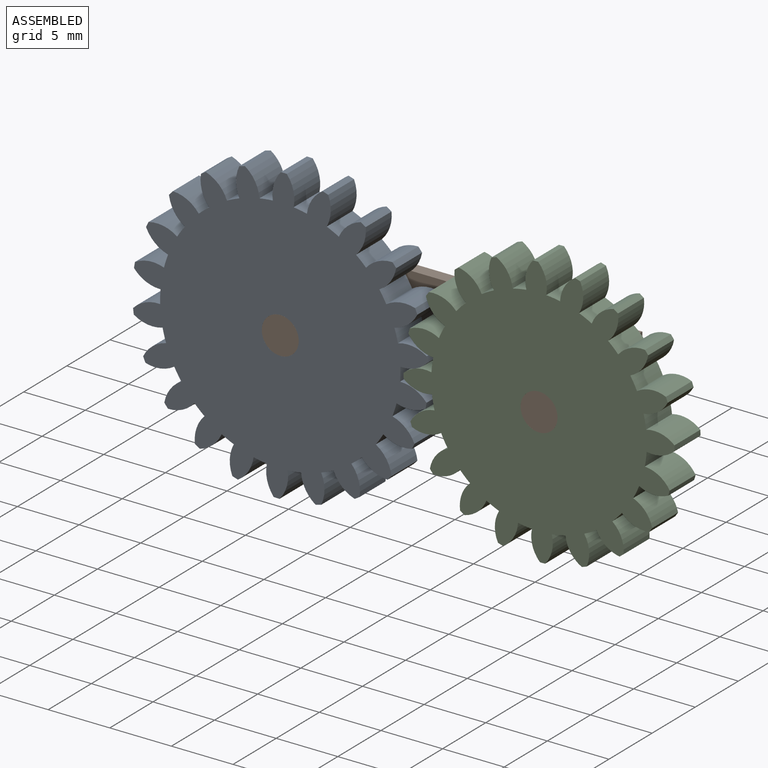
[diagram: assembled view]
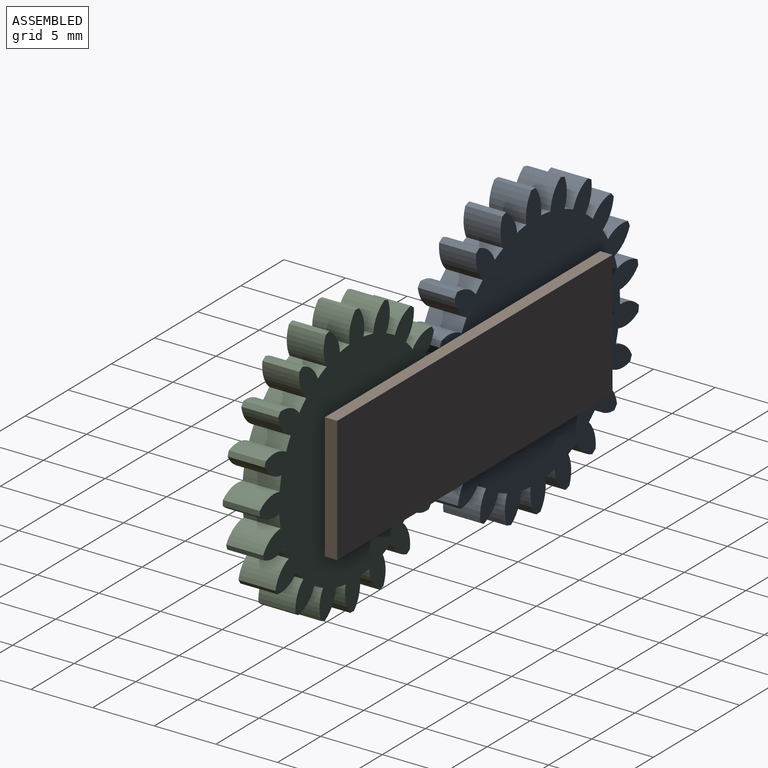
[diagram: assembled view, second angle]
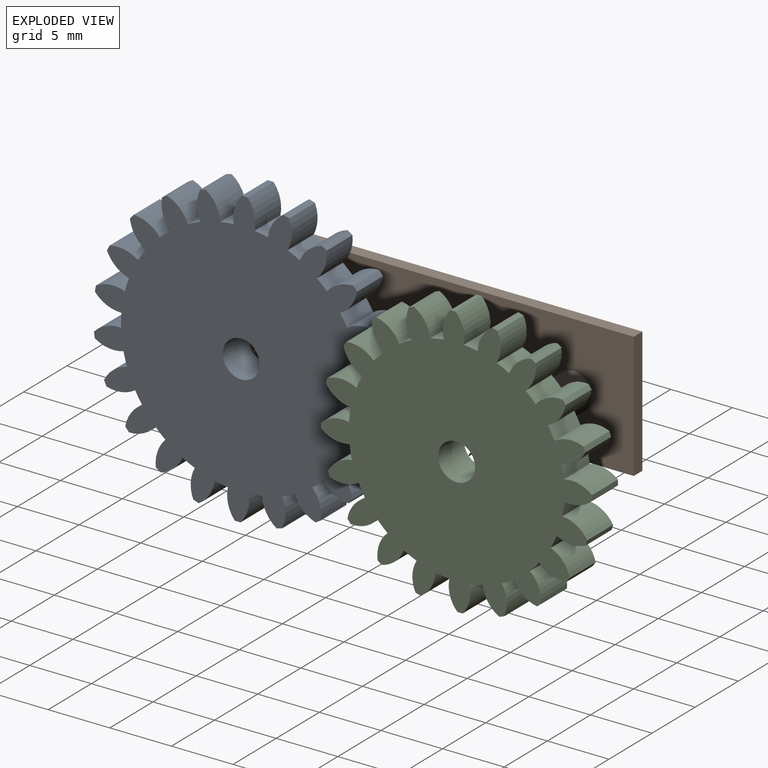
[diagram: exploded view]
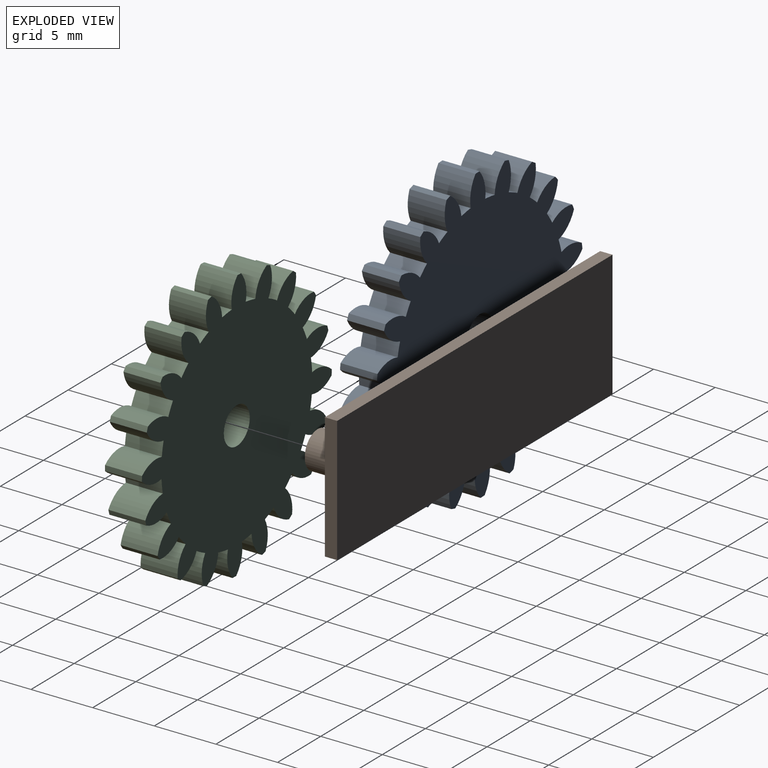
[diagram: exploded view, second angle]
ASSEMBLY  parts=3 mates=2
PART A: 91 faces, bbox 24x3x24 mm
  f0: cylinder r=9.75mm len=3mm, axis (0,1,0), area 3.3mm2, adj f1,f88,f89,f90
  f1: cylinder r=2.75mm len=3mm, axis (0,1,0), area 7.3mm2, adj f0,f2,f89,f90
  f2: cylinder r=12mm len=3mm, axis (0,1,0), area 1.4mm2, adj f1,f3,f89,f90
  f3: cylinder r=2.75mm len=3mm, axis (0,1,0), area 7.3mm2, adj f2,f4,f89,f90
  f4: cylinder r=9.75mm len=3mm, axis (0,1,0), area 3.3mm2, adj f3,f5,f89,f90
  f5: cylinder r=2.75mm len=3mm, axis (0,1,0), area 7.3mm2, adj f4,f6,f89,f90
  f6: cylinder r=12mm len=3mm, axis (0,1,0), area 1.4mm2, adj f5,f7,f89,f90
  f7: cylinder r=2.75mm len=3mm, axis (0,1,0), area 7.3mm2, adj f6,f8,f89,f90
  f8: cylinder r=9.75mm len=3mm, axis (0,1,0), area 3.3mm2, adj f7,f9,f89,f90
  f9: cylinder r=2.75mm len=3mm, axis (0,1,0), area 7.3mm2, adj f8,f10,f89,f90
  f10: cylinder r=12mm len=3mm, axis (0,1,0), area 1.4mm2, adj f9,f11,f89,f90
  f11: cylinder r=2.75mm len=3mm, axis (0,1,0), area 7.3mm2, adj f10,f12,f89,f90
  f12: cylinder r=9.75mm len=3mm, axis (0,1,0), area 3.3mm2, adj f11,f13,f89,f90
  f13: cylinder r=2.75mm len=3mm, axis (0,1,0), area 7.3mm2, adj f12,f14,f89,f90
  f14: cylinder r=12mm len=3mm, axis (0,1,0), area 1.4mm2, adj f13,f15,f89,f90
  f15: cylinder r=2.75mm len=3mm, axis (0,1,0), area 7.3mm2, adj f14,f16,f89,f90
  f16: cylinder r=9.75mm len=3mm, axis (0,1,0), area 3.3mm2, adj f15,f17,f89,f90
  f17: cylinder r=2.75mm len=3mm, axis (0,1,0), area 7.3mm2, adj f16,f18,f89,f90
  f18: cylinder r=12mm len=3mm, axis (0,1,0), area 1.4mm2, adj f17,f19,f89,f90
  f19: cylinder r=2.75mm len=3mm, axis (0,1,0), area 7.3mm2, adj f18,f20,f89,f90
  f20: cylinder r=9.75mm len=3mm, axis (0,1,0), area 3.3mm2, adj f19,f21,f89,f90
  f21: cylinder r=2.75mm len=3mm, axis (0,1,0), area 7.3mm2, adj f20,f22,f89,f90
  f22: cylinder r=12mm len=3mm, axis (0,1,0), area 1.4mm2, adj f21,f23,f89,f90
  f23: cylinder r=2.75mm len=3mm, axis (0,1,0), area 7.3mm2, adj f22,f24,f89,f90
  f24: cylinder r=9.75mm len=3mm, axis (0,1,0), area 3.3mm2, adj f23,f25,f89,f90
  f25: cylinder r=2.75mm len=3mm, axis (0,1,0), area 7.3mm2, adj f24,f26,f89,f90
  f26: cylinder r=12mm len=3mm, axis (0,1,0), area 1.4mm2, adj f25,f27,f89,f90
  f27: cylinder r=2.75mm len=3mm, axis (0,1,0), area 7.3mm2, adj f26,f28,f89,f90
  f28: cylinder r=9.75mm len=3mm, axis (0,1,0), area 3.3mm2, adj f27,f29,f89,f90
  f29: cylinder r=2.75mm len=3mm, axis (0,1,0), area 7.3mm2, adj f28,f30,f89,f90
  f30: cylinder r=12mm len=3mm, axis (0,1,0), area 1.4mm2, adj f29,f31,f89,f90
  f31: cylinder r=2.75mm len=3mm, axis (0,1,0), area 7.3mm2, adj f30,f32,f89,f90
  f32: cylinder r=9.75mm len=3mm, axis (0,1,0), area 3.3mm2, adj f31,f33,f89,f90
  f33: cylinder r=2.75mm len=3mm, axis (0,1,0), area 7.3mm2, adj f32,f34,f89,f90
  f34: cylinder r=12mm len=3mm, axis (0,1,0), area 1.4mm2, adj f33,f35,f89,f90
  f35: cylinder r=2.75mm len=3mm, axis (0,1,0), area 7.3mm2, adj f34,f36,f89,f90
  f36: cylinder r=9.75mm len=3mm, axis (0,1,0), area 3.3mm2, adj f35,f37,f89,f90
  f37: cylinder r=2.75mm len=3mm, axis (0,1,0), area 7.3mm2, adj f36,f38,f89,f90
  f38: cylinder r=12mm len=3mm, axis (0,1,0), area 1.4mm2, adj f37,f39,f89,f90
  f39: cylinder r=2.75mm len=3mm, axis (0,1,0), area 7.3mm2, adj f38,f40,f89,f90
  f40: cylinder r=9.75mm len=3mm, axis (0,1,0), area 3.3mm2, adj f39,f41,f89,f90
  f41: cylinder r=2.75mm len=3mm, axis (0,1,0), area 7.3mm2, adj f40,f42,f89,f90
  f42: cylinder r=12mm len=3mm, axis (0,1,0), area 1.4mm2, adj f41,f43,f89,f90
  f43: cylinder r=2.75mm len=3mm, axis (0,1,0), area 7.3mm2, adj f42,f44,f89,f90
  f44: cylinder r=9.75mm len=3mm, axis (0,1,0), area 3.3mm2, adj f43,f45,f89,f90
  f45: cylinder r=2.75mm len=3mm, axis (0,1,0), area 7.3mm2, adj f44,f46,f89,f90
  f46: cylinder r=12mm len=3mm, axis (0,1,0), area 1.4mm2, adj f45,f47,f89,f90
  f47: cylinder r=2.75mm len=3mm, axis (0,1,0), area 7.3mm2, adj f46,f48,f89,f90
  f48: cylinder r=9.75mm len=3mm, axis (0,1,0), area 3.3mm2, adj f47,f49,f89,f90
  f49: cylinder r=2.75mm len=3mm, axis (0,1,0), area 7.3mm2, adj f48,f50,f89,f90
  f50: cylinder r=12mm len=3mm, axis (0,1,0), area 1.4mm2, adj f49,f51,f89,f90
  f51: cylinder r=2.75mm len=3mm, axis (0,1,0), area 7.3mm2, adj f50,f52,f89,f90
  f52: cylinder r=9.75mm len=3mm, axis (0,1,0), area 3.3mm2, adj f51,f53,f89,f90
  f53: cylinder r=2.75mm len=3mm, axis (0,1,0), area 7.3mm2, adj f52,f54,f89,f90
  f54: cylinder r=12mm len=3mm, axis (0,1,0), area 1.4mm2, adj f53,f55,f89,f90
  f55: cylinder r=2.75mm len=3mm, axis (0,1,0), area 7.3mm2, adj f54,f56,f89,f90
  f56: cylinder r=9.75mm len=3mm, axis (0,1,0), area 3.3mm2, adj f55,f57,f89,f90
  f57: cylinder r=2.75mm len=3mm, axis (0,1,0), area 7.3mm2, adj f56,f58,f89,f90
  f58: cylinder r=12mm len=3mm, axis (0,1,0), area 1.4mm2, adj f57,f59,f89,f90
  f59: cylinder r=2.75mm len=3mm, axis (0,1,0), area 7.3mm2, adj f58,f60,f89,f90
  f60: cylinder r=9.75mm len=3mm, axis (0,1,0), area 3.3mm2, adj f59,f61,f89,f90
  f61: cylinder r=2.75mm len=3mm, axis (0,1,0), area 7.3mm2, adj f60,f62,f89,f90
  f62: cylinder r=12mm len=3mm, axis (0,1,0), area 1.4mm2, adj f61,f63,f89,f90
  f63: cylinder r=2.75mm len=3mm, axis (0,1,0), area 7.3mm2, adj f62,f64,f89,f90
  f64: cylinder r=9.75mm len=3mm, axis (0,1,0), area 3.3mm2, adj f63,f65,f89,f90
  f65: cylinder r=2.75mm len=3mm, axis (0,1,0), area 7.3mm2, adj f64,f66,f89,f90
  f66: cylinder r=12mm len=3mm, axis (0,1,0), area 1.4mm2, adj f65,f67,f89,f90
  f67: cylinder r=2.75mm len=3mm, axis (0,1,0), area 7.3mm2, adj f66,f68,f89,f90
  f68: cylinder r=9.75mm len=3mm, axis (0,1,0), area 3.3mm2, adj f67,f69,f89,f90
  f69: cylinder r=2.75mm len=3mm, axis (0,1,0), area 7.3mm2, adj f68,f70,f89,f90
  f70: cylinder r=12mm len=3mm, axis (0,1,0), area 1.4mm2, adj f69,f71,f89,f90
  f71: cylinder r=2.75mm len=3mm, axis (0,1,0), area 7.3mm2, adj f70,f72,f89,f90
  f72: cylinder r=9.75mm len=3mm, axis (0,1,0), area 3.3mm2, adj f71,f73,f89,f90
  f73: cylinder r=2.75mm len=3mm, axis (0,1,0), area 7.3mm2, adj f72,f74,f89,f90
  f74: cylinder r=12mm len=3mm, axis (0,1,0), area 1.4mm2, adj f73,f75,f89,f90
  f75: cylinder r=2.75mm len=3mm, axis (0,1,0), area 7.3mm2, adj f74,f76,f89,f90
  f76: cylinder r=9.75mm len=3mm, axis (0,1,0), area 3.3mm2, adj f75,f77,f89,f90
  f77: cylinder r=2.75mm len=3mm, axis (0,1,0), area 7.3mm2, adj f76,f78,f89,f90
  f78: cylinder r=12mm len=3mm, axis (0,1,0), area 1.4mm2, adj f77,f79,f89,f90
  f79: cylinder r=2.75mm len=3mm, axis (0,1,0), area 7.3mm2, adj f78,f80,f89,f90
  f80: cylinder r=9.75mm len=3mm, axis (0,1,0), area 3.3mm2, adj f79,f81,f89,f90
  f81: cylinder r=2.75mm len=3mm, axis (0,1,0), area 7.3mm2, adj f80,f82,f89,f90
  f82: cylinder r=12mm len=3mm, axis (0,1,0), area 1.4mm2, adj f81,f83,f89,f90
  f83: cylinder r=2.75mm len=3mm, axis (0,1,0), area 7.3mm2, adj f82,f84,f89,f90
  f84: cylinder r=9.75mm len=3mm, axis (0,1,0), area 3.3mm2, adj f83,f85,f89,f90
  f85: cylinder r=2.75mm len=3mm, axis (0,1,0), area 7.3mm2, adj f84,f86,f89,f90
  f86: cylinder r=12mm len=3mm, axis (0,1,0), area 1.4mm2, adj f85,f88,f89,f90
  f87: cylinder r=1.5mm len=3mm, axis (0,1,0), area 28.3mm2, adj f89,f90
  f88: cylinder r=2.75mm len=3mm, axis (0,1,0), area 7.3mm2, adj f0,f86,f89,f90
  f89: plane 23.97x23.97mm, normal (0,-1,0), area 363.7mm2, adj f0,f1,f2,f3,f4,f5,f6,f7
  f90: plane 23.97x23.97mm, normal (0,1,0), area 363.7mm2, adj f0,f1,f2,f3,f4,f5,f6,f7
PART B: 10 faces, bbox 31.9x5x10.2 mm
  f0: cylinder r=1.5mm len=4mm, axis (0,1,0), area 37.7mm2, adj f1,f8
  f1: plane 3x3mm, normal (0,-1,0), area 7.1mm2, adj f0
  f2: cylinder r=1.5mm len=4mm, axis (0,1,0), area 37.7mm2, adj f3,f8
  f3: plane 3x3mm, normal (0,-1,0), area 7.1mm2, adj f2
  f4: plane 31.91x1mm, normal (0,0,1), area 31.9mm2, adj f5,f7,f8,f9
  f5: plane 10.21x1mm, normal (-1,0,0), area 10.2mm2, adj f4,f6,f8,f9
  f6: plane 31.91x1mm, normal (0,0,-1), area 31.9mm2, adj f5,f7,f8,f9
  f7: plane 10.21x1mm, normal (1,0,0), area 10.2mm2, adj f4,f6,f8,f9
  f8: plane 31.91x10.21mm, normal (0,-1,0), area 311.7mm2, adj f0,f2,f4,f5,f6,f7
  f9: plane 31.91x10.21mm, normal (0,1,0), area 325.9mm2, adj f4,f5,f6,f7
PART C: 83 faces, bbox 22x3x22 mm
  f0: cylinder r=8.75mm len=3mm, axis (0,1,0), area 3.4mm2, adj f1,f80,f81,f82
  f1: cylinder r=2.5mm len=3mm, axis (0,1,0), area 7.4mm2, adj f0,f2,f81,f82
  f2: cylinder r=11mm len=3mm, axis (0,1,0), area 1.3mm2, adj f1,f3,f81,f82
  f3: cylinder r=2.5mm len=3mm, axis (0,1,0), area 7.4mm2, adj f2,f4,f81,f82
  f4: cylinder r=8.75mm len=3mm, axis (0,1,0), area 3.4mm2, adj f3,f5,f81,f82
  f5: cylinder r=2.5mm len=3mm, axis (0,1,0), area 7.4mm2, adj f4,f6,f81,f82
  f6: cylinder r=11mm len=3mm, axis (0,1,0), area 1.3mm2, adj f5,f7,f81,f82
  f7: cylinder r=2.5mm len=3mm, axis (0,1,0), area 7.4mm2, adj f6,f8,f81,f82
  f8: cylinder r=8.75mm len=3mm, axis (0,1,0), area 3.4mm2, adj f7,f9,f81,f82
  f9: cylinder r=2.5mm len=3mm, axis (0,1,0), area 7.4mm2, adj f8,f10,f81,f82
  f10: cylinder r=11mm len=3mm, axis (0,1,0), area 1.3mm2, adj f9,f11,f81,f82
  f11: cylinder r=2.5mm len=3mm, axis (0,1,0), area 7.4mm2, adj f10,f12,f81,f82
  f12: cylinder r=8.75mm len=3mm, axis (0,1,0), area 3.4mm2, adj f11,f13,f81,f82
  f13: cylinder r=2.5mm len=3mm, axis (0,1,0), area 7.4mm2, adj f12,f14,f81,f82
  f14: cylinder r=11mm len=3mm, axis (0,1,0), area 1.3mm2, adj f13,f15,f81,f82
  f15: cylinder r=2.5mm len=3mm, axis (0,1,0), area 7.4mm2, adj f14,f16,f81,f82
  f16: cylinder r=8.75mm len=3mm, axis (0,1,0), area 3.4mm2, adj f15,f17,f81,f82
  f17: cylinder r=2.5mm len=3mm, axis (0,1,0), area 7.4mm2, adj f16,f18,f81,f82
  f18: cylinder r=11mm len=3mm, axis (0,1,0), area 1.3mm2, adj f17,f19,f81,f82
  f19: cylinder r=2.5mm len=3mm, axis (0,1,0), area 7.4mm2, adj f18,f20,f81,f82
  f20: cylinder r=8.75mm len=3mm, axis (0,1,0), area 3.4mm2, adj f19,f21,f81,f82
  f21: cylinder r=2.5mm len=3mm, axis (0,1,0), area 7.4mm2, adj f20,f22,f81,f82
  f22: cylinder r=11mm len=3mm, axis (0,1,0), area 1.3mm2, adj f21,f23,f81,f82
  f23: cylinder r=2.5mm len=3mm, axis (0,1,0), area 7.4mm2, adj f22,f24,f81,f82
  f24: cylinder r=8.75mm len=3mm, axis (0,1,0), area 3.4mm2, adj f23,f25,f81,f82
  f25: cylinder r=2.5mm len=3mm, axis (0,1,0), area 7.4mm2, adj f24,f26,f81,f82
  f26: cylinder r=11mm len=3mm, axis (0,1,0), area 1.3mm2, adj f25,f27,f81,f82
  f27: cylinder r=2.5mm len=3mm, axis (0,1,0), area 7.4mm2, adj f26,f28,f81,f82
  f28: cylinder r=8.75mm len=3mm, axis (0,1,0), area 3.4mm2, adj f27,f29,f81,f82
  f29: cylinder r=2.5mm len=3mm, axis (0,1,0), area 7.4mm2, adj f28,f30,f81,f82
  f30: cylinder r=11mm len=3mm, axis (0,1,0), area 1.3mm2, adj f29,f31,f81,f82
  f31: cylinder r=2.5mm len=3mm, axis (0,1,0), area 7.4mm2, adj f30,f32,f81,f82
  f32: cylinder r=8.75mm len=3mm, axis (0,1,0), area 3.4mm2, adj f31,f33,f81,f82
  f33: cylinder r=2.5mm len=3mm, axis (0,1,0), area 7.4mm2, adj f32,f34,f81,f82
  f34: cylinder r=11mm len=3mm, axis (0,1,0), area 1.3mm2, adj f33,f35,f81,f82
  f35: cylinder r=2.5mm len=3mm, axis (0,1,0), area 7.4mm2, adj f34,f36,f81,f82
  f36: cylinder r=8.75mm len=3mm, axis (0,1,0), area 3.4mm2, adj f35,f37,f81,f82
  f37: cylinder r=2.5mm len=3mm, axis (0,1,0), area 7.4mm2, adj f36,f38,f81,f82
  f38: cylinder r=11mm len=3mm, axis (0,1,0), area 1.3mm2, adj f37,f39,f81,f82
  f39: cylinder r=2.5mm len=3mm, axis (0,1,0), area 7.4mm2, adj f38,f40,f81,f82
  f40: cylinder r=8.75mm len=3mm, axis (0,1,0), area 3.4mm2, adj f39,f41,f81,f82
  f41: cylinder r=2.5mm len=3mm, axis (0,1,0), area 7.4mm2, adj f40,f42,f81,f82
  f42: cylinder r=11mm len=3mm, axis (0,1,0), area 1.3mm2, adj f41,f43,f81,f82
  f43: cylinder r=2.5mm len=3mm, axis (0,1,0), area 7.4mm2, adj f42,f44,f81,f82
  f44: cylinder r=8.75mm len=3mm, axis (0,1,0), area 3.4mm2, adj f43,f45,f81,f82
  f45: cylinder r=2.5mm len=3mm, axis (0,1,0), area 7.4mm2, adj f44,f46,f81,f82
  f46: cylinder r=11mm len=3mm, axis (0,1,0), area 1.3mm2, adj f45,f47,f81,f82
  f47: cylinder r=2.5mm len=3mm, axis (0,1,0), area 7.4mm2, adj f46,f48,f81,f82
  f48: cylinder r=8.75mm len=3mm, axis (0,1,0), area 3.4mm2, adj f47,f49,f81,f82
  f49: cylinder r=2.5mm len=3mm, axis (0,1,0), area 7.4mm2, adj f48,f50,f81,f82
  f50: cylinder r=11mm len=3mm, axis (0,1,0), area 1.3mm2, adj f49,f51,f81,f82
  f51: cylinder r=2.5mm len=3mm, axis (0,1,0), area 7.4mm2, adj f50,f52,f81,f82
  f52: cylinder r=8.75mm len=3mm, axis (0,1,0), area 3.4mm2, adj f51,f53,f81,f82
  f53: cylinder r=2.5mm len=3mm, axis (0,1,0), area 7.4mm2, adj f52,f54,f81,f82
  f54: cylinder r=11mm len=3mm, axis (0,1,0), area 1.3mm2, adj f53,f55,f81,f82
  f55: cylinder r=2.5mm len=3mm, axis (0,1,0), area 7.4mm2, adj f54,f56,f81,f82
  f56: cylinder r=8.75mm len=3mm, axis (0,1,0), area 3.4mm2, adj f55,f57,f81,f82
  f57: cylinder r=2.5mm len=3mm, axis (0,1,0), area 7.4mm2, adj f56,f58,f81,f82
  f58: cylinder r=11mm len=3mm, axis (0,1,0), area 1.3mm2, adj f57,f59,f81,f82
  f59: cylinder r=2.5mm len=3mm, axis (0,1,0), area 7.4mm2, adj f58,f60,f81,f82
  f60: cylinder r=8.75mm len=3mm, axis (0,1,0), area 3.4mm2, adj f59,f61,f81,f82
  f61: cylinder r=2.5mm len=3mm, axis (0,1,0), area 7.4mm2, adj f60,f62,f81,f82
  f62: cylinder r=11mm len=3mm, axis (0,1,0), area 1.3mm2, adj f61,f63,f81,f82
  f63: cylinder r=2.5mm len=3mm, axis (0,1,0), area 7.4mm2, adj f62,f64,f81,f82
  f64: cylinder r=8.75mm len=3mm, axis (0,1,0), area 3.4mm2, adj f63,f65,f81,f82
  f65: cylinder r=2.5mm len=3mm, axis (0,1,0), area 7.4mm2, adj f64,f66,f81,f82
  f66: cylinder r=11mm len=3mm, axis (0,1,0), area 1.3mm2, adj f65,f67,f81,f82
  f67: cylinder r=2.5mm len=3mm, axis (0,1,0), area 7.4mm2, adj f66,f68,f81,f82
  f68: cylinder r=8.75mm len=3mm, axis (0,1,0), area 3.4mm2, adj f67,f69,f81,f82
  f69: cylinder r=2.5mm len=3mm, axis (0,1,0), area 7.4mm2, adj f68,f70,f81,f82
  f70: cylinder r=11mm len=3mm, axis (0,1,0), area 1.3mm2, adj f69,f71,f81,f82
  f71: cylinder r=2.5mm len=3mm, axis (0,1,0), area 7.4mm2, adj f70,f72,f81,f82
  f72: cylinder r=8.75mm len=3mm, axis (0,1,0), area 3.4mm2, adj f71,f73,f81,f82
  f73: cylinder r=2.5mm len=3mm, axis (0,1,0), area 7.4mm2, adj f72,f74,f81,f82
  f74: cylinder r=11mm len=3mm, axis (0,1,0), area 1.3mm2, adj f73,f75,f81,f82
  f75: cylinder r=2.5mm len=3mm, axis (0,1,0), area 7.4mm2, adj f74,f76,f81,f82
  f76: cylinder r=8.75mm len=3mm, axis (0,1,0), area 3.4mm2, adj f75,f77,f81,f82
  f77: cylinder r=2.5mm len=3mm, axis (0,1,0), area 7.4mm2, adj f76,f78,f81,f82
  f78: cylinder r=11mm len=3mm, axis (0,1,0), area 1.3mm2, adj f77,f80,f81,f82
  f79: cylinder r=1.5mm len=3mm, axis (0,1,0), area 28.3mm2, adj f81,f82
  f80: cylinder r=2.5mm len=3mm, axis (0,1,0), area 7.4mm2, adj f0,f78,f81,f82
  f81: plane 21.96x21.96mm, normal (0,-1,0), area 298mm2, adj f0,f1,f2,f3,f4,f5,f6,f7
  f82: plane 21.96x21.96mm, normal (0,1,0), area 298mm2, adj f0,f1,f2,f3,f4,f5,f6,f7
PLACE A rot(axis=(0,1,0),21.9deg) t=(-10.43,-2.35,0.17)mm
PLACE B t=(-0.19,-0.35,0.17)mm fixed
PLACE C rot(axis=(0,-1,0),15deg) t=(10.57,-2.35,0.17)mm
MATE revolute A.f72 <-> B.f0  axis (0,-1,0) through (-10.43,-5.35,0.17)mm
MATE revolute C.f78 <-> B.f2  axis (0,-1,0) through (10.57,-5.35,0.17)mm
